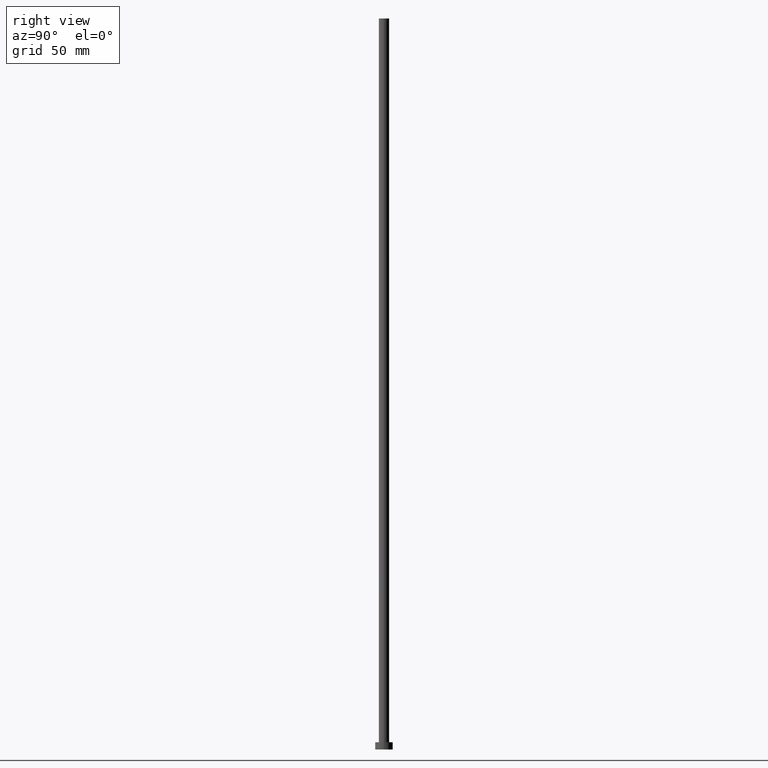
[diagram: clean part render]
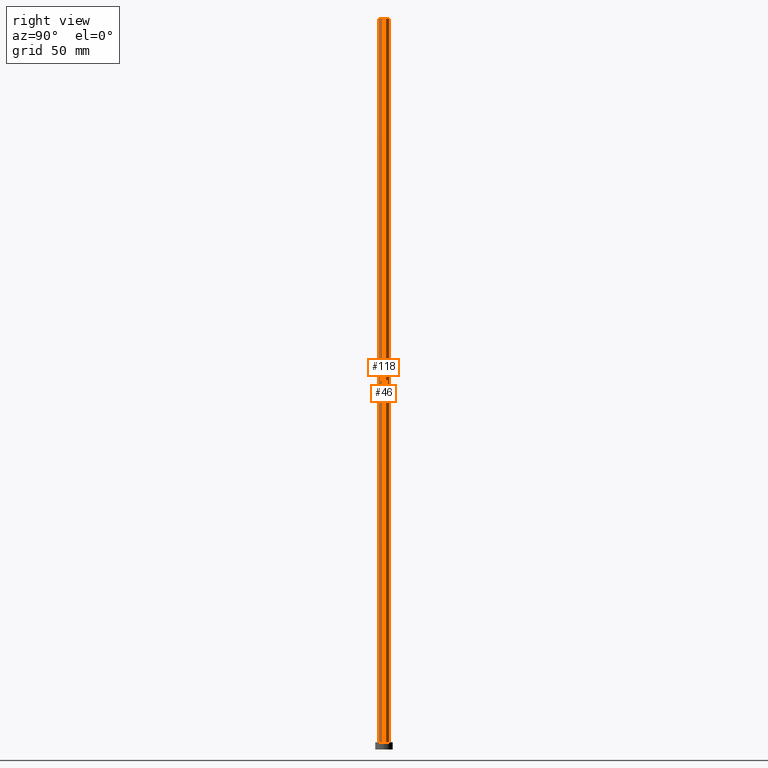
[diagram: same view with one multi-face feature highlighted, each face labeled with its STEP entity id]
A machine part, right view. The highlighted faces form ONE feature: a constant-radius fillet chain: 2 tangent blend faces with common blend radius 3.5 mm. The faces share edges in the B-rep.
Their STEP definitions:
[1] entity #46 (Cylinder):
#11 = DIRECTION ( 'NONE',  ( -0.000000000000000000, -0.000000000000000000, -1.000000000000000000 ) ) ;
#14 = CARTESIAN_POINT ( 'NONE',  ( 3.500000000000000000, 4.286263797015736595E-16, 500.0000000000000000 ) ) ;
#16 = DIRECTION ( 'NONE',  ( 1.000000000000000000, 0.000000000000000000, 0.000000000000000000 ) ) ;
#18 = VECTOR ( 'NONE', #105, 1000.000000000000000 ) ;
#23 = VERTEX_POINT ( 'NONE', #203 ) ;
#24 = EDGE_LOOP ( 'NONE', ( #64, #144, #28, #180 ) ) ;
#28 = ORIENTED_EDGE ( 'NONE', *, *, #75, .T. ) ;
#35 = EDGE_CURVE ( 'NONE', #74, #23, #164, .T. ) ;
#46 = ADVANCED_FACE ( 'NONE', ( #108 ), #206, .T. ) ;
#51 = CIRCLE ( 'NONE', #60, 3.500000000000000000 ) ;
#60 = AXIS2_PLACEMENT_3D ( 'NONE', #148, #107, #16 ) ;
#64 = ORIENTED_EDGE ( 'NONE', *, *, #230, .F. ) ;
#66 = EDGE_CURVE ( 'NONE', #120, #93, #189, .T. ) ;
#70 = DIRECTION ( 'NONE',  ( -0.000000000000000000, -0.000000000000000000, -1.000000000000000000 ) ) ;
#72 = AXIS2_PLACEMENT_3D ( 'NONE', #234, #113, #195 ) ;
#73 = CARTESIAN_POINT ( 'NONE',  ( -3.500000000000000000, 0.000000000000000000, 500.0000000000000000 ) ) ;
#74 = VERTEX_POINT ( 'NONE', #130 ) ;
#75 = EDGE_CURVE ( 'NONE', #23, #93, #51, .T. ) ;
#93 = VERTEX_POINT ( 'NONE', #207 ) ;
#105 = DIRECTION ( 'NONE',  ( -0.000000000000000000, -0.000000000000000000, -1.000000000000000000 ) ) ;
#107 = DIRECTION ( 'NONE',  ( 0.000000000000000000, 0.000000000000000000, 1.000000000000000000 ) ) ;
#108 = FACE_OUTER_BOUND ( 'NONE', #24, .T. ) ;
#113 = DIRECTION ( 'NONE',  ( 0.000000000000000000, 0.000000000000000000, 1.000000000000000000 ) ) ;
#120 = VERTEX_POINT ( 'NONE', #188 ) ;
#129 = AXIS2_PLACEMENT_3D ( 'NONE', #249, #70, #208 ) ;
#130 = CARTESIAN_POINT ( 'NONE',  ( 3.500000000000000000, 4.286263797015736595E-16, 500.0000000000000000 ) ) ;
#144 = ORIENTED_EDGE ( 'NONE', *, *, #35, .T. ) ;
#148 = CARTESIAN_POINT ( 'NONE',  ( 0.000000000000000000, 0.000000000000000000, 5.000000000000000000 ) ) ;
#164 = LINE ( 'NONE', #14, #236 ) ;
#180 = ORIENTED_EDGE ( 'NONE', *, *, #66, .F. ) ;
#188 = CARTESIAN_POINT ( 'NONE',  ( -3.500000000000000000, 0.000000000000000000, 500.0000000000000000 ) ) ;
#189 = LINE ( 'NONE', #73, #18 ) ;
#195 = DIRECTION ( 'NONE',  ( 1.000000000000000000, 0.000000000000000000, 0.000000000000000000 ) ) ;
#203 = CARTESIAN_POINT ( 'NONE',  ( 3.500000000000000000, 4.286263797015736595E-16, 5.000000000000000000 ) ) ;
#206 = CYLINDRICAL_SURFACE ( 'NONE', #129, 3.500000000000000000 ) ;
#207 = CARTESIAN_POINT ( 'NONE',  ( -3.500000000000000000, 0.000000000000000000, 5.000000000000000000 ) ) ;
#208 = DIRECTION ( 'NONE',  ( -1.000000000000000000, 0.000000000000000000, 0.000000000000000000 ) ) ;
#230 = EDGE_CURVE ( 'NONE', #74, #120, #242, .T. ) ;
#234 = CARTESIAN_POINT ( 'NONE',  ( 0.000000000000000000, 0.000000000000000000, 500.0000000000000000 ) ) ;
#236 = VECTOR ( 'NONE', #11, 1000.000000000000000 ) ;
#242 = CIRCLE ( 'NONE', #72, 3.500000000000000000 ) ;
#249 = CARTESIAN_POINT ( 'NONE',  ( 0.000000000000000000, 0.000000000000000000, 500.0000000000000000 ) ) ;
[2] entity #118 (Cylinder):
#11 = DIRECTION ( 'NONE',  ( -0.000000000000000000, -0.000000000000000000, -1.000000000000000000 ) ) ;
#14 = CARTESIAN_POINT ( 'NONE',  ( 3.500000000000000000, 4.286263797015736595E-16, 500.0000000000000000 ) ) ;
#18 = VECTOR ( 'NONE', #105, 1000.000000000000000 ) ;
#21 = DIRECTION ( 'NONE',  ( 0.000000000000000000, 0.000000000000000000, 1.000000000000000000 ) ) ;
#23 = VERTEX_POINT ( 'NONE', #203 ) ;
#35 = EDGE_CURVE ( 'NONE', #74, #23, #164, .T. ) ;
#36 = DIRECTION ( 'NONE',  ( 0.000000000000000000, 0.000000000000000000, 1.000000000000000000 ) ) ;
#54 = CARTESIAN_POINT ( 'NONE',  ( 0.000000000000000000, 0.000000000000000000, 500.0000000000000000 ) ) ;
#66 = EDGE_CURVE ( 'NONE', #120, #93, #189, .T. ) ;
#68 = CARTESIAN_POINT ( 'NONE',  ( 0.000000000000000000, 0.000000000000000000, 500.0000000000000000 ) ) ;
#73 = CARTESIAN_POINT ( 'NONE',  ( -3.500000000000000000, 0.000000000000000000, 500.0000000000000000 ) ) ;
#74 = VERTEX_POINT ( 'NONE', #130 ) ;
#81 = ORIENTED_EDGE ( 'NONE', *, *, #66, .T. ) ;
#84 = CYLINDRICAL_SURFACE ( 'NONE', #132, 3.500000000000000000 ) ;
#88 = DIRECTION ( 'NONE',  ( -1.000000000000000000, 0.000000000000000000, 0.000000000000000000 ) ) ;
#91 = CIRCLE ( 'NONE', #173, 3.500000000000000000 ) ;
#92 = DIRECTION ( 'NONE',  ( 1.000000000000000000, 0.000000000000000000, 0.000000000000000000 ) ) ;
#93 = VERTEX_POINT ( 'NONE', #207 ) ;
#98 = EDGE_CURVE ( 'NONE', #120, #74, #147, .T. ) ;
#103 = DIRECTION ( 'NONE',  ( 1.000000000000000000, 0.000000000000000000, 0.000000000000000000 ) ) ;
#105 = DIRECTION ( 'NONE',  ( -0.000000000000000000, -0.000000000000000000, -1.000000000000000000 ) ) ;
#118 = ADVANCED_FACE ( 'NONE', ( #228 ), #84, .T. ) ;
#120 = VERTEX_POINT ( 'NONE', #188 ) ;
#130 = CARTESIAN_POINT ( 'NONE',  ( 3.500000000000000000, 4.286263797015736595E-16, 500.0000000000000000 ) ) ;
#132 = AXIS2_PLACEMENT_3D ( 'NONE', #68, #224, #88 ) ;
#147 = CIRCLE ( 'NONE', #177, 3.500000000000000000 ) ;
#161 = ORIENTED_EDGE ( 'NONE', *, *, #219, .T. ) ;
#164 = LINE ( 'NONE', #14, #236 ) ;
#173 = AXIS2_PLACEMENT_3D ( 'NONE', #210, #21, #92 ) ;
#177 = AXIS2_PLACEMENT_3D ( 'NONE', #54, #36, #103 ) ;
#188 = CARTESIAN_POINT ( 'NONE',  ( -3.500000000000000000, 0.000000000000000000, 500.0000000000000000 ) ) ;
#189 = LINE ( 'NONE', #73, #18 ) ;
#203 = CARTESIAN_POINT ( 'NONE',  ( 3.500000000000000000, 4.286263797015736595E-16, 5.000000000000000000 ) ) ;
#207 = CARTESIAN_POINT ( 'NONE',  ( -3.500000000000000000, 0.000000000000000000, 5.000000000000000000 ) ) ;
#210 = CARTESIAN_POINT ( 'NONE',  ( 0.000000000000000000, 0.000000000000000000, 5.000000000000000000 ) ) ;
#217 = ORIENTED_EDGE ( 'NONE', *, *, #35, .F. ) ;
#219 = EDGE_CURVE ( 'NONE', #93, #23, #91, .T. ) ;
#224 = DIRECTION ( 'NONE',  ( -0.000000000000000000, -0.000000000000000000, -1.000000000000000000 ) ) ;
#228 = FACE_OUTER_BOUND ( 'NONE', #254, .T. ) ;
#236 = VECTOR ( 'NONE', #11, 1000.000000000000000 ) ;
#240 = ORIENTED_EDGE ( 'NONE', *, *, #98, .F. ) ;
#254 = EDGE_LOOP ( 'NONE', ( #217, #240, #81, #161 ) ) ;